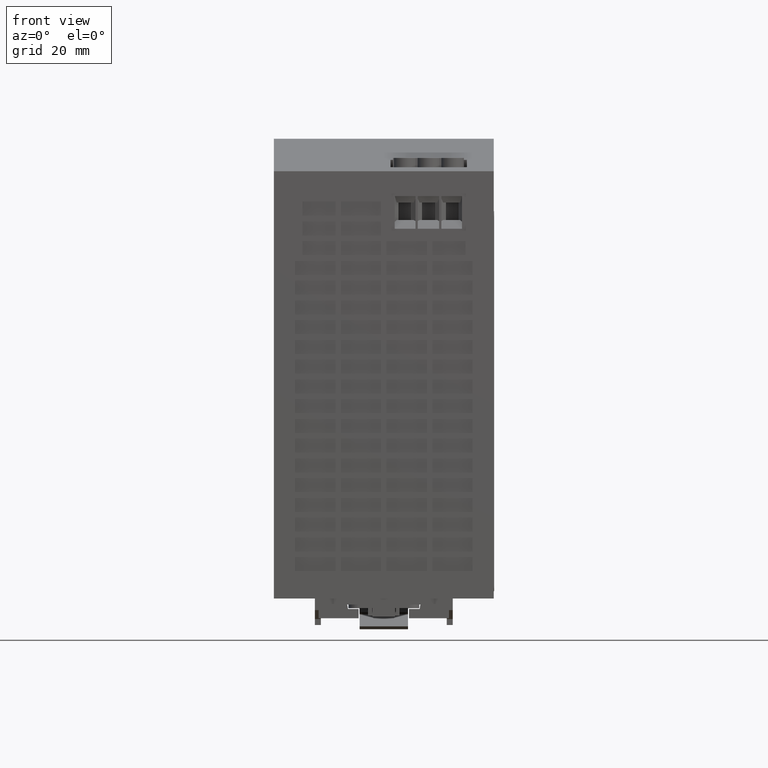
[diagram: clean part render]
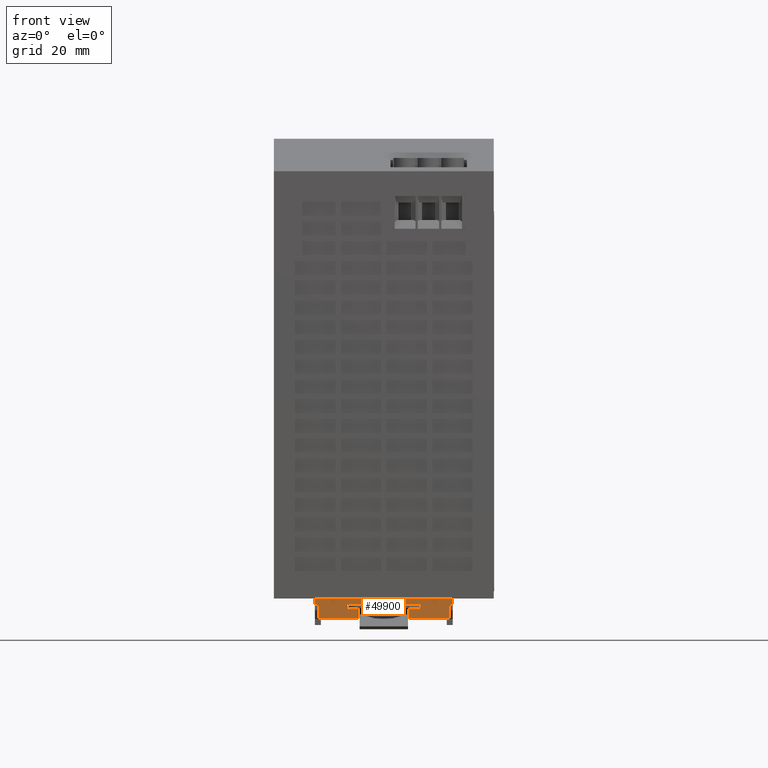
[diagram: same view with one face highlighted and labeled with its STEP entity id]
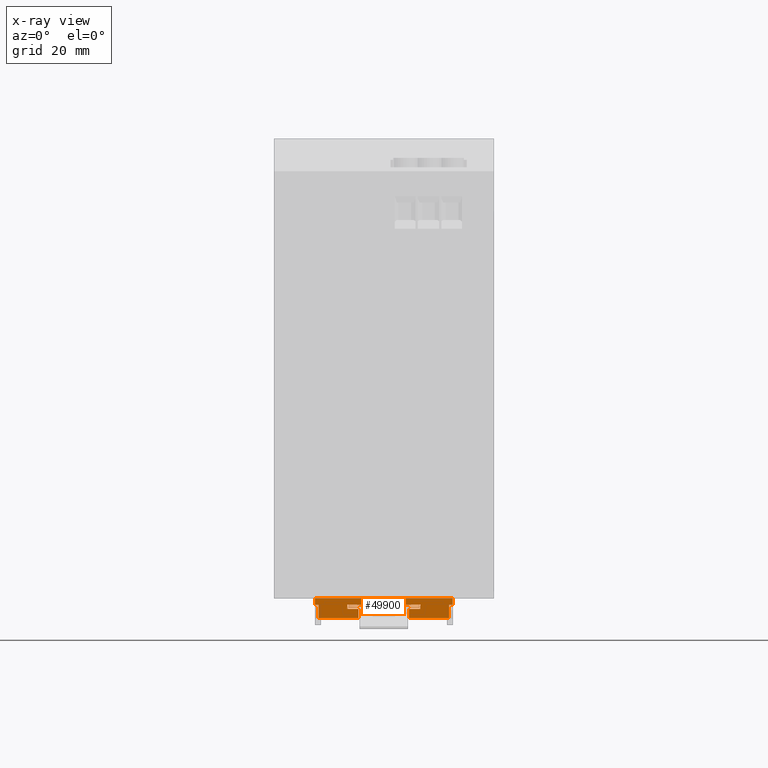
[diagram: x-ray of the same camera — body ghosted, the highlighted face saturated]
A machine part, front view. The second image highlights one B-rep face of the part: STEP entity #49900.
The next image is the same camera in x-ray: the body ghosted, the highlighted face saturated — about 0% of this face is hidden behind the body in this view.
In plain terms, the highlighted planar face has unit normal (0, 1, -0).
Its self-contained STEP definition (entity closure, byte-faithful):
#60=CARTESIAN_POINT('',(36.25,5.50000298982859,6.644554087467));
#70=DIRECTION('',(0.,-2.98985317938209E-6,-0.99999999999553));
#80=VECTOR('',#70,1.);
#90=LINE('',#60,#80);
#100=CARTESIAN_POINT('',(36.25,5.49999940200477,5.44455408747236));
#110=VERTEX_POINT('',#100);
#120=CARTESIAN_POINT('',(36.25,5.49999192737182,2.94455408748354));
#130=VERTEX_POINT('',#120);
#140=EDGE_CURVE('',#110,#130,#90,.T.);
#530=CARTESIAN_POINT('',(39.3,5.50000298982859,6.644554087467));
#540=DIRECTION('',(0.,2.98985317938209E-6,0.99999999999553));
#550=VECTOR('',#540,1.);
#560=LINE('',#530,#550);
#570=CARTESIAN_POINT('',(39.3,5.49999940200477,5.44455408747236));
#580=VERTEX_POINT('',#570);
#590=CARTESIAN_POINT('',(39.3,5.5000029898286,6.64455408746699));
#600=VERTEX_POINT('',#590);
#610=EDGE_CURVE('',#580,#600,#560,.T.);
#3230=CARTESIAN_POINT('',(11.,5.5000029898286,6.644554087467));
#3240=VERTEX_POINT('',#3230);
#3270=CARTESIAN_POINT('',(0.,5.5000029898286,6.64455408746699));
#3280=DIRECTION('',(1.,0.,0.));
#3290=VECTOR('',#3280,1.);
#3300=LINE('',#3270,#3290);
#3310=CARTESIAN_POINT('',(12.,5.5000029898286,6.644554087467));
#3320=VERTEX_POINT('',#3310);
#3330=EDGE_CURVE('',#3240,#3320,#3300,.T.);
#3550=CARTESIAN_POINT('',(19.7,5.5000029898286,6.644554087467));
#3560=VERTEX_POINT('',#3550);
#3590=CARTESIAN_POINT('',(20.,5.5000029898286,6.644554087467));
#3600=VERTEX_POINT('',#3590);
#3610=EDGE_CURVE('',#3560,#3600,#3300,.T.);
#3830=CARTESIAN_POINT('',(39.,5.5000029898286,6.644554087467));
#3840=VERTEX_POINT('',#3830);
#3870=EDGE_CURVE('',#3840,#600,#3300,.T.);
#4020=CARTESIAN_POINT('',(47.,5.5000029898286,6.64455408746699));
#4030=VERTEX_POINT('',#4020);
#4060=CARTESIAN_POINT('',(48.,5.5000029898286,6.644554087467));
#4070=VERTEX_POINT('',#4060);
#4080=EDGE_CURVE('',#4030,#4070,#3300,.T.);
#20860=CARTESIAN_POINT('',(0.,5.50000777359369,8.24455408741901));
#20870=DIRECTION('',(-1.,0.,0.));
#20880=VECTOR('',#20870,1.);
#20890=LINE('',#20860,#20880);
#20900=CARTESIAN_POINT('',(48.,5.50000777359369,8.24455408741901));
#20910=VERTEX_POINT('',#20900);
#20920=CARTESIAN_POINT('',(11.,5.5000077735937,8.24455408741901));
#20930=VERTEX_POINT('',#20920);
#20940=EDGE_CURVE('',#20910,#20930,#20890,.T.);
#48880=CARTESIAN_POINT('',(48.,5.50000777359369,8.24455408745984));
#48890=DIRECTION('',(0.,0.99999999999553,-2.98985317938209E-6));
#48900=DIRECTION('',(1.,0.,0.));
#48910=AXIS2_PLACEMENT_3D('',#48880,#48890,#48900);
#48920=PLANE('',#48910);
#48930=ORIENTED_EDGE('',*,*,#20940,.T.);
#48940=CARTESIAN_POINT('',(48.,5.49998312358744,0.));
#48950=DIRECTION('',(0.,2.98985317938209E-6,0.99999999999553));
#48960=VECTOR('',#48950,1.);
#48970=LINE('',#48940,#48960);
#48980=EDGE_CURVE('',#4070,#20910,#48970,.T.);
#48990=ORIENTED_EDGE('',*,*,#48980,.T.);
#49000=ORIENTED_EDGE('',*,*,#4080,.T.);
#49010=CARTESIAN_POINT('',(47.,5.50000298982859,6.644554087467));
#49020=DIRECTION('',(0.,2.98985317938209E-6,0.99999999999553));
#49030=VECTOR('',#49020,1.);
#49040=LINE('',#49010,#49030);
#49050=CARTESIAN_POINT('',(47.,5.49999192737182,2.94455408748354));
#49060=VERTEX_POINT('',#49050);
#49070=EDGE_CURVE('',#49060,#4030,#49040,.T.);
#49080=ORIENTED_EDGE('',*,*,#49070,.T.);
#49090=CARTESIAN_POINT('',(29.5,5.49999192737182,2.94455408748353));
#49100=DIRECTION('',(1.,0.,0.));
#49110=VECTOR('',#49100,1.);
#49120=LINE('',#49090,#49110);
#49130=EDGE_CURVE('',#130,#49060,#49120,.T.);
#49140=ORIENTED_EDGE('',*,*,#49130,.T.);
#49150=ORIENTED_EDGE('',*,*,#140,.T.);
#49160=CARTESIAN_POINT('',(39.3,5.49999940200477,5.44455408747236));
#49170=DIRECTION('',(-1.,0.,0.));
#49180=VECTOR('',#49170,1.);
#49190=LINE('',#49160,#49180);
#49200=EDGE_CURVE('',#580,#110,#49190,.T.);
#49210=ORIENTED_EDGE('',*,*,#49200,.T.);
#49220=ORIENTED_EDGE('',*,*,#610,.F.);
#49230=ORIENTED_EDGE('',*,*,#3870,.T.);
#49240=CARTESIAN_POINT('',(0.,5.5000029898286,6.644554087467));
#49250=DIRECTION('',(-1.,-1.44420921057245E-38,-4.83036832881609E-33));
#49260=VECTOR('',#49250,1.);
#49270=LINE('',#49240,#49260);
#49280=CARTESIAN_POINT('',(33.9142135623731,5.5000029898286,
6.644554087467));
#49290=VERTEX_POINT('',#49280);
#49300=EDGE_CURVE('',#3840,#49290,#49270,.T.);
#49310=ORIENTED_EDGE('',*,*,#49300,.F.);
#49320=CARTESIAN_POINT('',(0.,5.5000029898286,6.644554087467));
#49330=DIRECTION('',(1.,1.44420921057245E-38,4.83036832881609E-33));
#49340=VECTOR('',#49330,1.);
#49350=LINE('',#49320,#49340);
#49360=CARTESIAN_POINT('',(25.0857864376269,5.5000029898286,
6.644554087467));
#49370=VERTEX_POINT('',#49360);
#49380=EDGE_CURVE('',#49370,#49290,#49350,.T.);
#49390=ORIENTED_EDGE('',*,*,#49380,.T.);
#49400=EDGE_CURVE('',#49370,#3600,#49270,.T.);
#49410=ORIENTED_EDGE('',*,*,#49400,.F.);
#49420=ORIENTED_EDGE('',*,*,#3610,.T.);
#49430=CARTESIAN_POINT('',(19.7,5.50000298982859,6.644554087467));
#49440=DIRECTION('',(0.,2.98985317938209E-6,0.99999999999553));
#49450=VECTOR('',#49440,1.);
#49460=LINE('',#49430,#49450);
#49470=CARTESIAN_POINT('',(19.7,5.49999940200479,5.44455408747236));
#49480=VERTEX_POINT('',#49470);
#49490=EDGE_CURVE('',#49480,#3560,#49460,.T.);
#49500=ORIENTED_EDGE('',*,*,#49490,.T.);
#49510=CARTESIAN_POINT('',(19.7,5.49999940200477,5.44455408747236));
#49520=DIRECTION('',(1.,0.,0.));
#49530=VECTOR('',#49520,1.);
#49540=LINE('',#49510,#49530);
#49550=CARTESIAN_POINT('',(22.75,5.49999940200477,5.44455408747236));
#49560=VERTEX_POINT('',#49550);
#49570=EDGE_CURVE('',#49480,#49560,#49540,.T.);
#49580=ORIENTED_EDGE('',*,*,#49570,.F.);
#49590=CARTESIAN_POINT('',(22.75,5.50000298982859,6.644554087467));
#49600=DIRECTION('',(0.,2.98985317938209E-6,0.99999999999553));
#49610=VECTOR('',#49600,1.);
#49620=LINE('',#49590,#49610);
#49630=CARTESIAN_POINT('',(22.75,5.49999192737182,2.94455408748354));
#49640=VERTEX_POINT('',#49630);
#49650=EDGE_CURVE('',#49640,#49560,#49620,.T.);
#49660=ORIENTED_EDGE('',*,*,#49650,.T.);
#49670=CARTESIAN_POINT('',(29.5,5.49999192737182,2.94455408748353));
#49680=DIRECTION('',(1.,0.,0.));
#49690=VECTOR('',#49680,1.);
#49700=LINE('',#49670,#49690);
#49710=CARTESIAN_POINT('',(12.,5.49999192737182,2.94455408748354));
#49720=VERTEX_POINT('',#49710);
#49730=EDGE_CURVE('',#49720,#49640,#49700,.T.);
#49740=ORIENTED_EDGE('',*,*,#49730,.T.);
#49750=CARTESIAN_POINT('',(12.,5.50000298982859,6.644554087467));
#49760=DIRECTION('',(0.,-2.98985317938209E-6,-0.99999999999553));
#49770=VECTOR('',#49760,1.);
#49780=LINE('',#49750,#49770);
#49790=EDGE_CURVE('',#3320,#49720,#49780,.T.);
#49800=ORIENTED_EDGE('',*,*,#49790,.T.);
#49810=ORIENTED_EDGE('',*,*,#3330,.T.);
#49820=CARTESIAN_POINT('',(11.,5.49998312358744,0.));
#49830=DIRECTION('',(0.,-2.98985317938209E-6,-0.99999999999553));
#49840=VECTOR('',#49830,1.);
#49850=LINE('',#49820,#49840);
#49860=EDGE_CURVE('',#20930,#3240,#49850,.T.);
#49870=ORIENTED_EDGE('',*,*,#49860,.T.);
#49880=EDGE_LOOP('',(#49870,#49810,#49800,#49740,#49660,#49580,#49500,
#49420,#49410,#49390,#49310,#49230,#49220,#49210,#49150,#49140,#49080,
#49000,#48990,#48930));
#49890=FACE_OUTER_BOUND('',#49880,.T.);
#49900=ADVANCED_FACE('',(#49890),#48920,.F.);